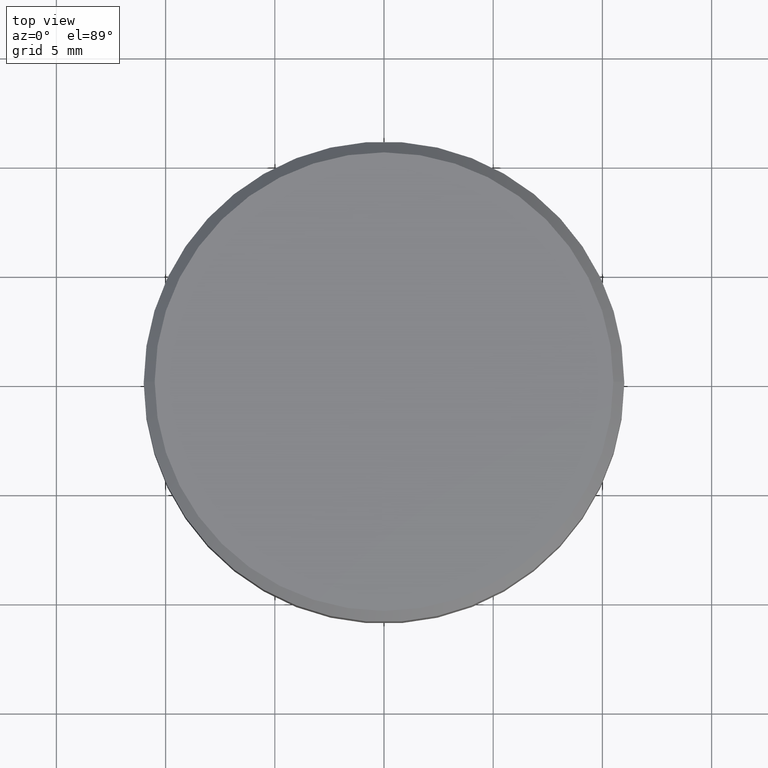
[diagram: clean part render]
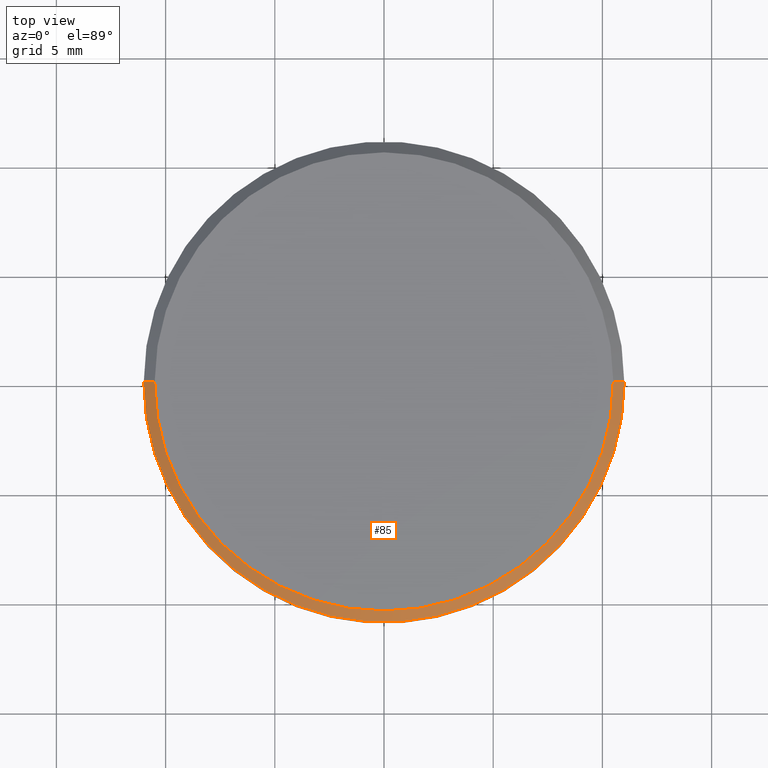
[diagram: same view with one face highlighted and labeled with its STEP entity id]
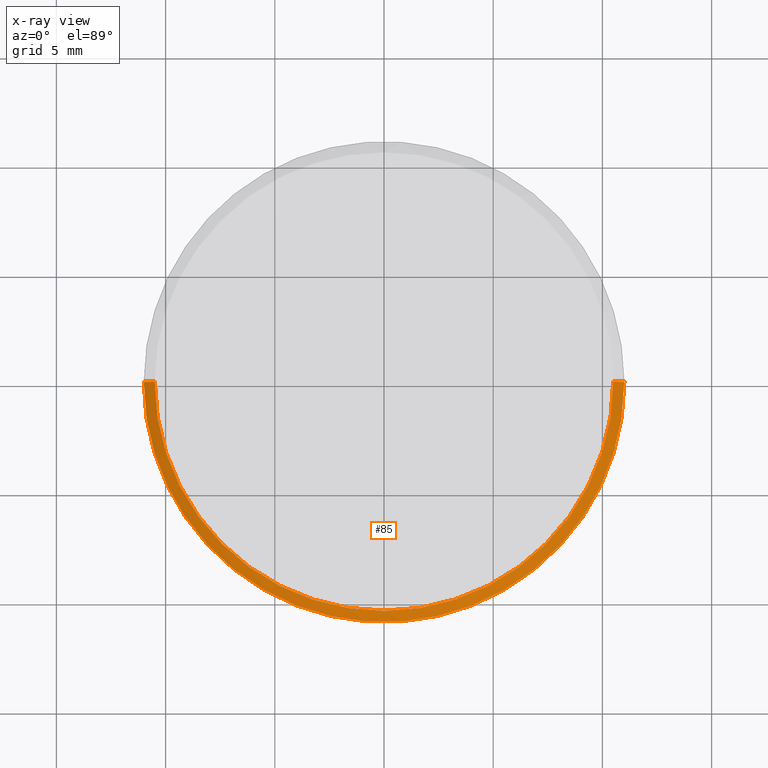
[diagram: x-ray of the same camera — body ghosted, the highlighted face saturated]
A machine part, top view. The second image highlights one B-rep face of the part: STEP entity #85.
The next image is the same camera in x-ray: the body ghosted, the highlighted face saturated — about 0% of this face is hidden behind the body in this view.
In plain terms, the highlighted conical surface has half-angle 45 deg.
Its self-contained STEP definition (entity closure, byte-faithful):
#7 = CARTESIAN_POINT ( 'NONE',  ( -10.50000000000000533, 0.000000000000000000, 0.000000000000000000 ) ) ;
#20 = CARTESIAN_POINT ( 'NONE',  ( 0.000000000000000000, 0.000000000000000000, -0.4999999999999968914 ) ) ;
#69 = CONICAL_SURFACE ( 'NONE', #180, 10.50000000000000533, 0.7853981633974447263 ) ;
#85 = ADVANCED_FACE ( 'NONE', ( #270 ), #69, .T. ) ;
#132 = DIRECTION ( 'NONE',  ( -0.000000000000000000, -0.000000000000000000, 1.000000000000000000 ) ) ;
#140 = LINE ( 'NONE', #7, #317 ) ;
#151 = EDGE_CURVE ( 'NONE', #207, #224, #140, .T. ) ;
#160 = CARTESIAN_POINT ( 'NONE',  ( 10.50000000000000533, 1.285879139104721619E-15, 0.000000000000000000 ) ) ;
#168 = CARTESIAN_POINT ( 'NONE',  ( 0.000000000000000000, 0.000000000000000000, 0.000000000000000000 ) ) ;
#173 = DIRECTION ( 'NONE',  ( 0.7071067811865451302, 8.659560562354904508E-17, -0.7071067811865500152 ) ) ;
#180 = AXIS2_PLACEMENT_3D ( 'NONE', #339, #184, #405 ) ;
#184 = DIRECTION ( 'NONE',  ( 0.000000000000000000, 0.000000000000000000, -1.000000000000000000 ) ) ;
#185 = LINE ( 'NONE', #160, #400 ) ;
#207 = VERTEX_POINT ( 'NONE', #397 ) ;
#210 = CARTESIAN_POINT ( 'NONE',  ( -11.00000000000000000, 1.347111479062088405E-15, -0.4999999999999968914 ) ) ;
#220 = VERTEX_POINT ( 'NONE', #266 ) ;
#224 = VERTEX_POINT ( 'NONE', #210 ) ;
#230 = DIRECTION ( 'NONE',  ( 1.000000000000000000, 0.000000000000000000, 0.000000000000000000 ) ) ;
#235 = EDGE_LOOP ( 'NONE', ( #261, #388, #343, #360 ) ) ;
#245 = EDGE_CURVE ( 'NONE', #280, #224, #328, .T. ) ;
#257 = AXIS2_PLACEMENT_3D ( 'NONE', #168, #132, #288 ) ;
#258 = CARTESIAN_POINT ( 'NONE',  ( 11.00000000000000000, 0.000000000000000000, -0.4999999999999968914 ) ) ;
#261 = ORIENTED_EDGE ( 'NONE', *, *, #352, .F. ) ;
#266 = CARTESIAN_POINT ( 'NONE',  ( 10.50000000000000533, 1.316495309083405012E-15, 0.000000000000000000 ) ) ;
#270 = FACE_OUTER_BOUND ( 'NONE', #235, .T. ) ;
#272 = DIRECTION ( 'NONE',  ( 0.000000000000000000, 0.000000000000000000, -1.000000000000000000 ) ) ;
#280 = VERTEX_POINT ( 'NONE', #258 ) ;
#286 = CIRCLE ( 'NONE', #257, 10.50000000000000533 ) ;
#288 = DIRECTION ( 'NONE',  ( 1.000000000000000000, 0.000000000000000000, 0.000000000000000000 ) ) ;
#290 = DIRECTION ( 'NONE',  ( -0.7071067811865451302, 0.000000000000000000, -0.7071067811865500152 ) ) ;
#309 = EDGE_CURVE ( 'NONE', #207, #220, #286, .T. ) ;
#317 = VECTOR ( 'NONE', #290, 1000.000000000000114 ) ;
#328 = CIRCLE ( 'NONE', #379, 11.00000000000000000 ) ;
#339 = CARTESIAN_POINT ( 'NONE',  ( 0.000000000000000000, 0.000000000000000000, 0.000000000000000000 ) ) ;
#343 = ORIENTED_EDGE ( 'NONE', *, *, #151, .T. ) ;
#352 = EDGE_CURVE ( 'NONE', #220, #280, #185, .T. ) ;
#360 = ORIENTED_EDGE ( 'NONE', *, *, #245, .F. ) ;
#379 = AXIS2_PLACEMENT_3D ( 'NONE', #20, #272, #230 ) ;
#388 = ORIENTED_EDGE ( 'NONE', *, *, #309, .F. ) ;
#397 = CARTESIAN_POINT ( 'NONE',  ( -10.50000000000000533, 0.000000000000000000, 0.000000000000000000 ) ) ;
#400 = VECTOR ( 'NONE', #173, 1000.000000000000114 ) ;
#405 = DIRECTION ( 'NONE',  ( -1.000000000000000000, 0.000000000000000000, 0.000000000000000000 ) ) ;